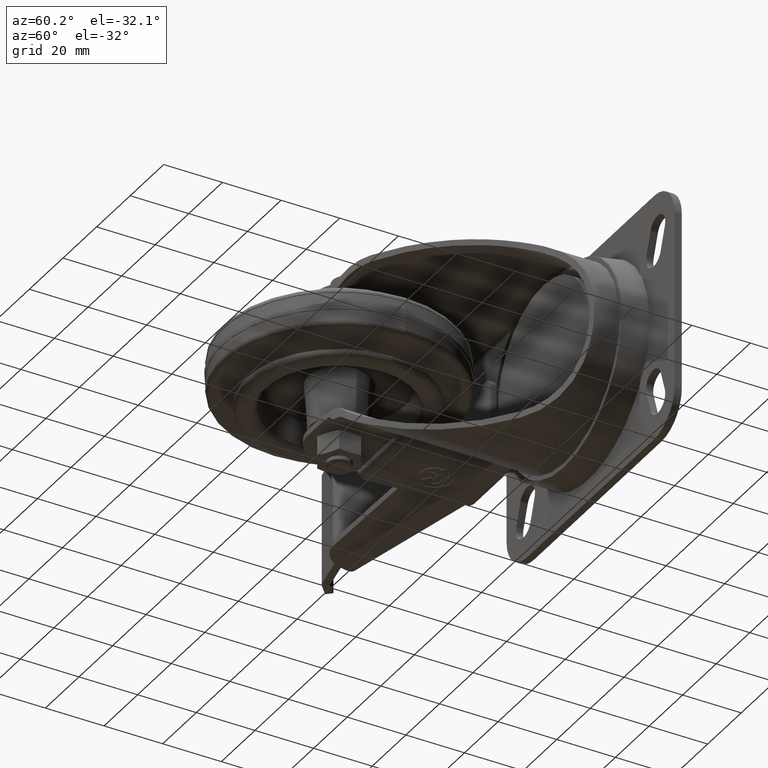
[diagram: clean part render]
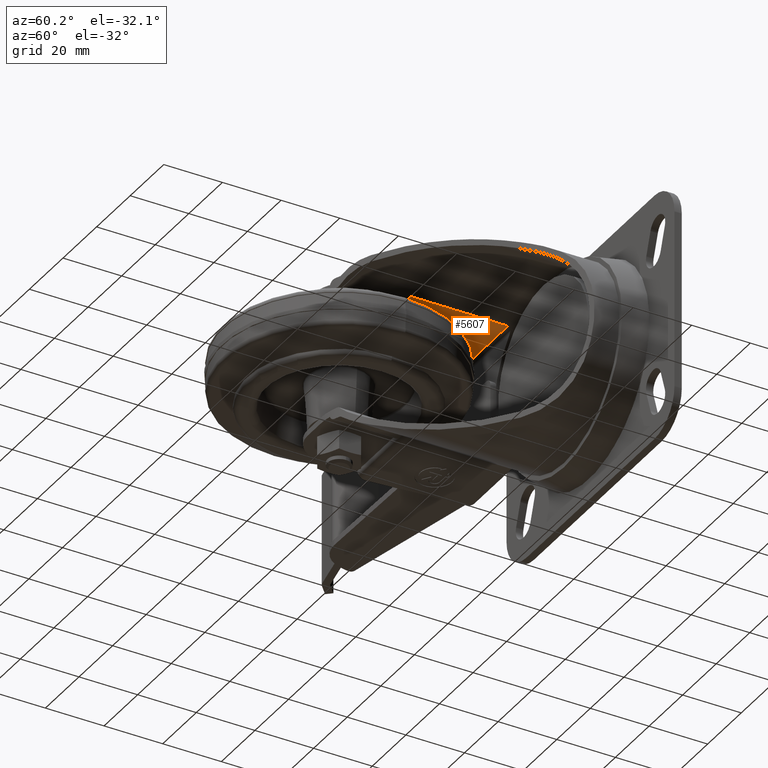
[diagram: same view with one face highlighted and labeled with its STEP entity id]
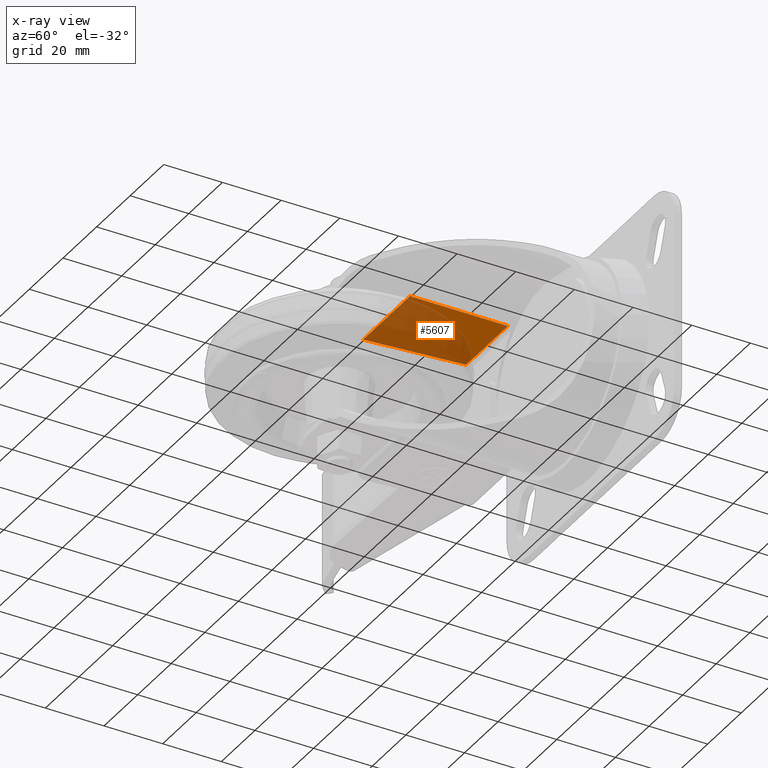
[diagram: x-ray of the same camera — body ghosted, the highlighted face saturated]
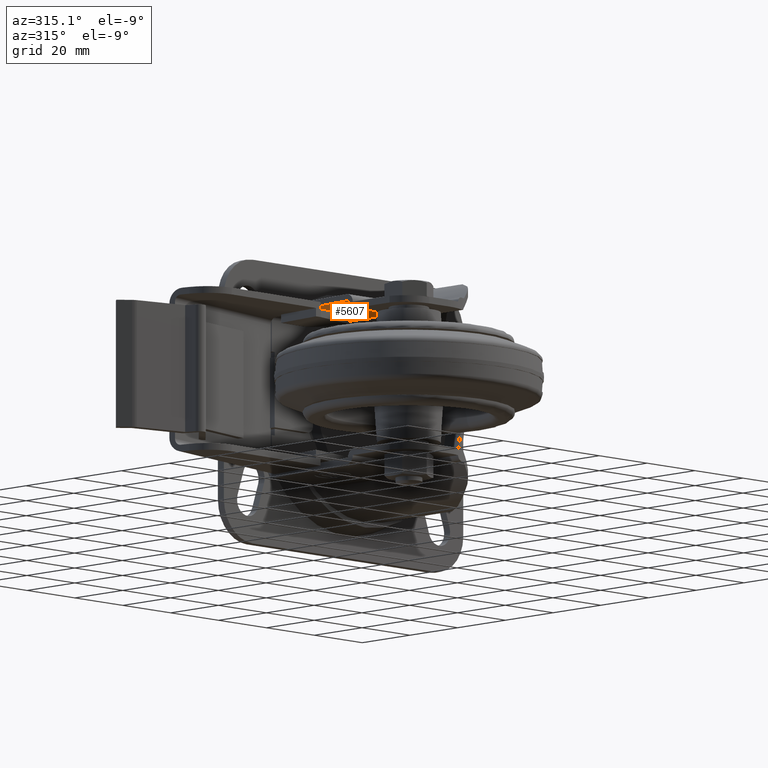
[diagram: same view with one face highlighted and labeled with its STEP entity id]
A machine part, auxiliary view. The second image highlights one B-rep face of the part: STEP entity #5607.
The next image is the same camera in x-ray: the body ghosted, the highlighted face saturated — about 71% of this face is hidden behind the body in this view.
A second angle (auxiliary view) of the same face is appended — the face is thin or edge-on in the first view.
In plain terms, the highlighted planar face has unit normal (0, 0, 1).
Its self-contained STEP definition (entity closure, byte-faithful):
#567=LINE('',#8508,#1073);
#570=LINE('',#8599,#1076);
#571=LINE('',#8600,#1077);
#572=LINE('',#8602,#1078);
#573=LINE('',#8603,#1079);
#1073=VECTOR('',#6794,33.43);
#1076=VECTOR('',#6805,32.6392798236095);
#1077=VECTOR('',#6806,24.937732705069);
#1078=VECTOR('',#6807,27.7824333808443);
#1079=VECTOR('',#6808,0.914922490187298);
#1653=FACE_OUTER_BOUND('',#2026,.T.);
#2026=EDGE_LOOP('',(#4113,#4114,#4115,#4116,#4117));
#2667=VERTEX_POINT('',#8496);
#2668=VERTEX_POINT('',#8507);
#2677=VERTEX_POINT('',#8597);
#2678=VERTEX_POINT('',#8598);
#2679=VERTEX_POINT('',#8601);
#3220=EDGE_CURVE('',#2668,#2667,#567,.F.);
#3231=EDGE_CURVE('',#2677,#2678,#570,.T.);
#3232=EDGE_CURVE('',#2677,#2668,#571,.T.);
#3233=EDGE_CURVE('',#2679,#2667,#572,.T.);
#3234=EDGE_CURVE('',#2678,#2679,#573,.T.);
#4113=ORIENTED_EDGE('',*,*,#3231,.F.);
#4114=ORIENTED_EDGE('',*,*,#3232,.T.);
#4115=ORIENTED_EDGE('',*,*,#3220,.T.);
#4116=ORIENTED_EDGE('',*,*,#3233,.F.);
#4117=ORIENTED_EDGE('',*,*,#3234,.F.);
#5370=PLANE('',#6012);
#5607=ADVANCED_FACE('',(#1653),#5370,.F.);
#6012=AXIS2_PLACEMENT_3D('',#8596,#6803,#6804);
#6794=DIRECTION('',(0.,1.,0.));
#6803=DIRECTION('center_axis',(0.,0.,1.));
#6804=DIRECTION('ref_axis',(1.,0.,0.));
#6805=DIRECTION('',(-0.0871557427476581,-0.996194698091746,0.));
#6806=DIRECTION('',(1.,0.,0.));
#6807=DIRECTION('',(1.,0.,0.));
#6808=DIRECTION('',(0.,-1.,0.));
#8496=CARTESIAN_POINT('',(16.7824333808443,14.5,23.5));
#8507=CARTESIAN_POINT('',(16.7824333808443,47.93,23.5));
#8508=CARTESIAN_POINT('',(16.7824333808443,52.5,23.5));
#8596=CARTESIAN_POINT('Origin',(-16.,47.93,23.5));
#8597=CARTESIAN_POINT('',(-8.15529932422467,47.93,23.5));
#8598=CARTESIAN_POINT('',(-11.,15.4149224901873,23.5));
#8599=CARTESIAN_POINT('',(-7.53675447309638,55.,23.5));
#8600=CARTESIAN_POINT('',(-16.,47.93,23.5));
#8601=CARTESIAN_POINT('',(-11.,14.5,23.5));
#8602=CARTESIAN_POINT('',(-16.,14.5,23.5));
#8603=CARTESIAN_POINT('',(-11.,15.,23.5));